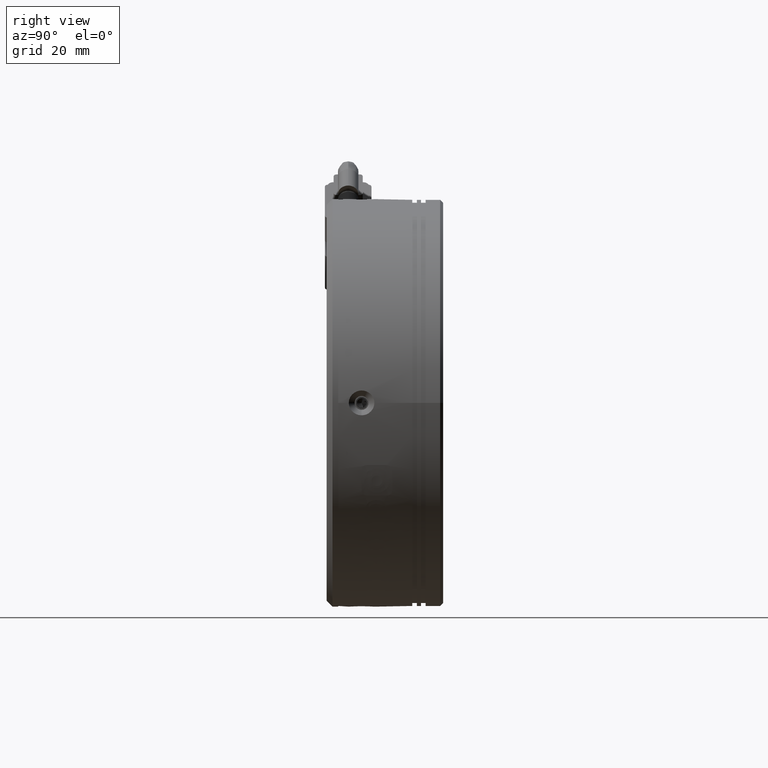
[diagram: clean part render]
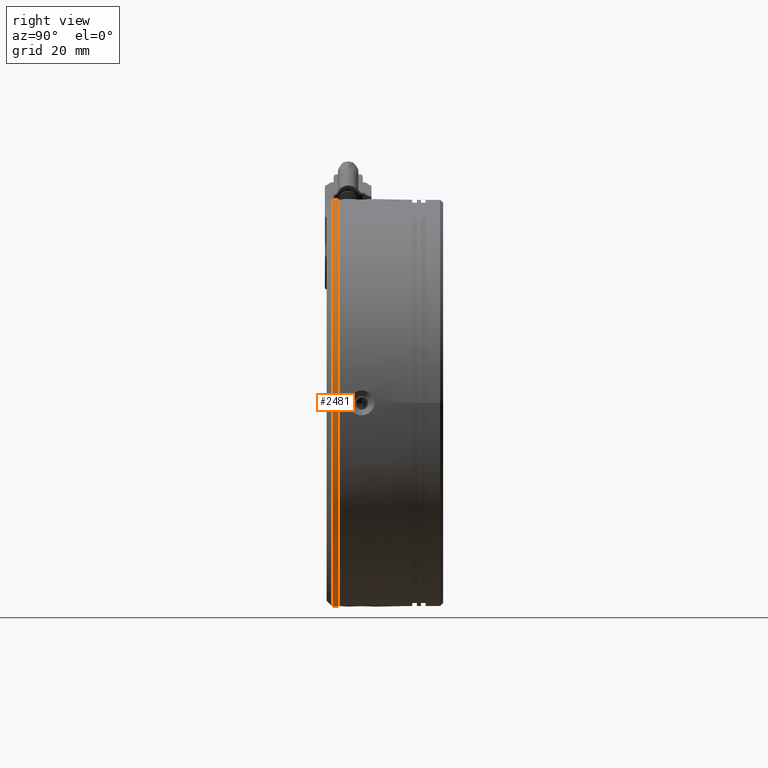
[diagram: same view with one face highlighted and labeled with its STEP entity id]
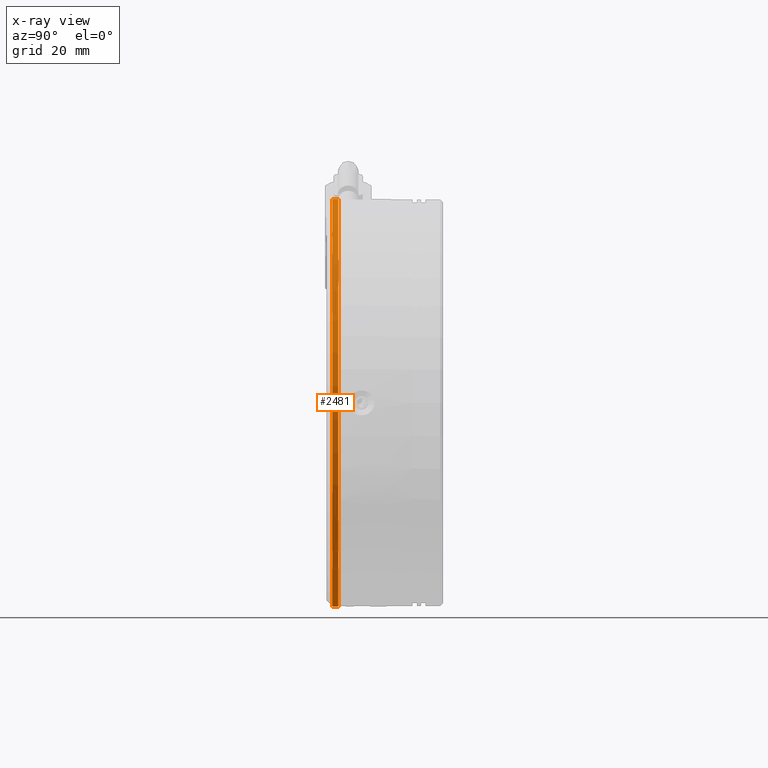
[diagram: x-ray of the same camera — body ghosted, the highlighted face saturated]
A machine part, right view. The second image highlights one B-rep face of the part: STEP entity #2481.
The next image is the same camera in x-ray: the body ghosted, the highlighted face saturated — about 0% of this face is hidden behind the body in this view.
In plain terms, the highlighted cylindrical surface (partial cylindrical patch) has radius 35 mm, axis along (-0, 1, -0).
Its self-contained STEP definition (entity closure, byte-faithful):
#1506 = DIRECTION ( 'NONE',  ( 0.0000000000000000000, 0.0000000000000000000, 1.000000000000000000 ) ) ;
#2481 = ADVANCED_FACE ( 'NONE', ( #82695 ), #38940, .T. ) ;
#9520 = LINE ( 'NONE', #17303, #46748 ) ;
#11842 = CIRCLE ( 'NONE', #69855, 34.99999999999999300 ) ;
#13450 = ORIENTED_EDGE ( 'NONE', *, *, #87400, .T. ) ;
#13690 = DIRECTION ( 'NONE',  ( -0.0000000000000000000, 1.000000000000000000, -0.0000000000000000000 ) ) ;
#14151 = AXIS2_PLACEMENT_3D ( 'NONE', #41792, #13690, #69967 ) ;
#14589 = CARTESIAN_POINT ( 'NONE',  ( -3.499229287090534200, 49.67432128801908700, -34.99999999999999300 ) ) ;
#14816 = DIRECTION ( 'NONE',  ( 0.0000000000000000000, -1.000000000000000000, 0.0000000000000000000 ) ) ;
#17303 = CARTESIAN_POINT ( 'NONE',  ( -3.499229287090538600, 49.67432128801908700, 34.99999999999999300 ) ) ;
#17409 = VERTEX_POINT ( 'NONE', #47789 ) ;
#22324 = EDGE_LOOP ( 'NONE', ( #38665, #13450, #82186, #88399 ) ) ;
#27550 = CARTESIAN_POINT ( 'NONE',  ( -3.499229287090534200, 32.07623868994506500, -34.99999999999999300 ) ) ;
#28659 = DIRECTION ( 'NONE',  ( -0.0000000000000000000, 1.000000000000000000, -0.0000000000000000000 ) ) ;
#38665 = ORIENTED_EDGE ( 'NONE', *, *, #48809, .F. ) ;
#38940 = CYLINDRICAL_SURFACE ( 'NONE', #14151, 34.99999999999999300 ) ;
#40114 = LINE ( 'NONE', #14589, #75141 ) ;
#41792 = CARTESIAN_POINT ( 'NONE',  ( -3.499229287090538600, 49.67432128801908700, 0.0000000000000000000 ) ) ;
#43384 = DIRECTION ( 'NONE',  ( 0.0000000000000000000, -1.000000000000000000, 0.0000000000000000000 ) ) ;
#44802 = DIRECTION ( 'NONE',  ( -0.0000000000000000000, 1.000000000000000000, -0.0000000000000000000 ) ) ;
#46748 = VECTOR ( 'NONE', #44802, 1000.000000000000000 ) ;
#47789 = CARTESIAN_POINT ( 'NONE',  ( -3.499229287090534200, 33.07623868994505000, -34.99999999999999300 ) ) ;
#48809 = EDGE_CURVE ( 'NONE', #59207, #63573, #74523, .T. ) ;
#51832 = EDGE_CURVE ( 'NONE', #17409, #85091, #11842, .T. ) ;
#56657 = CARTESIAN_POINT ( 'NONE',  ( -3.499229287090538600, 33.07623868994505000, 0.0000000000000000000 ) ) ;
#59207 = VERTEX_POINT ( 'NONE', #27550 ) ;
#63573 = VERTEX_POINT ( 'NONE', #79038 ) ;
#63718 = DIRECTION ( 'NONE',  ( 0.0000000000000000000, 0.0000000000000000000, 1.000000000000000000 ) ) ;
#69622 = CARTESIAN_POINT ( 'NONE',  ( -3.499229287090538600, 33.07623868994505000, 34.99999999999999300 ) ) ;
#69855 = AXIS2_PLACEMENT_3D ( 'NONE', #56657, #14816, #63718 ) ;
#69967 = DIRECTION ( 'NONE',  ( 0.0000000000000000000, 0.0000000000000000000, 1.000000000000000000 ) ) ;
#71386 = EDGE_CURVE ( 'NONE', #63573, #85091, #9520, .T. ) ;
#72367 = AXIS2_PLACEMENT_3D ( 'NONE', #85292, #43384, #1506 ) ;
#74523 = CIRCLE ( 'NONE', #72367, 34.99999999999999300 ) ;
#75141 = VECTOR ( 'NONE', #28659, 1000.000000000000000 ) ;
#79038 = CARTESIAN_POINT ( 'NONE',  ( -3.499229287090538600, 32.07623868994506500, 34.99999999999999300 ) ) ;
#82186 = ORIENTED_EDGE ( 'NONE', *, *, #51832, .T. ) ;
#82695 = FACE_OUTER_BOUND ( 'NONE', #22324, .T. ) ;
#85091 = VERTEX_POINT ( 'NONE', #69622 ) ;
#85292 = CARTESIAN_POINT ( 'NONE',  ( -3.499229287090538600, 32.07623868994506500, 0.0000000000000000000 ) ) ;
#87400 = EDGE_CURVE ( 'NONE', #59207, #17409, #40114, .T. ) ;
#88399 = ORIENTED_EDGE ( 'NONE', *, *, #71386, .F. ) ;